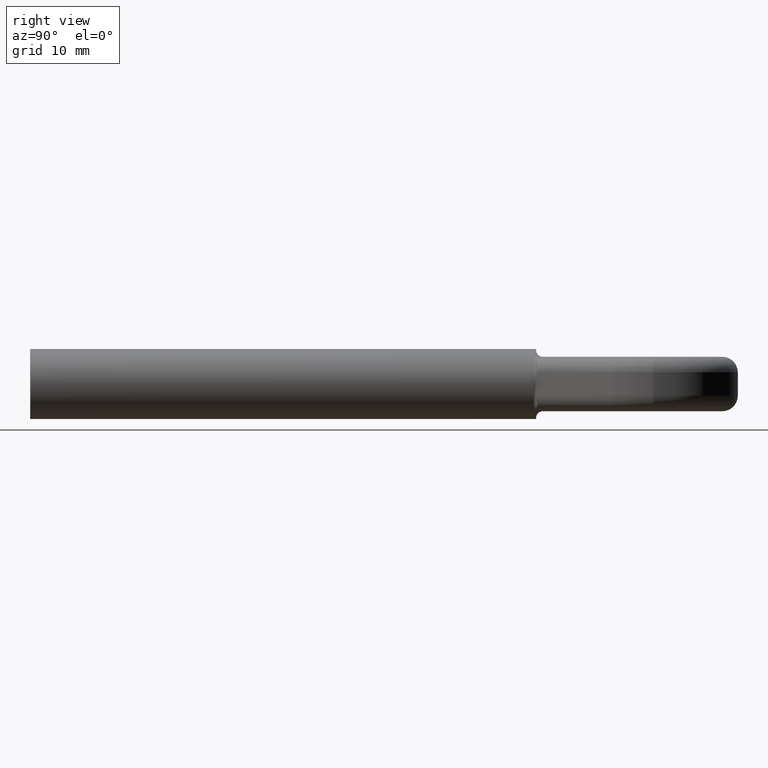
[diagram: clean part render]
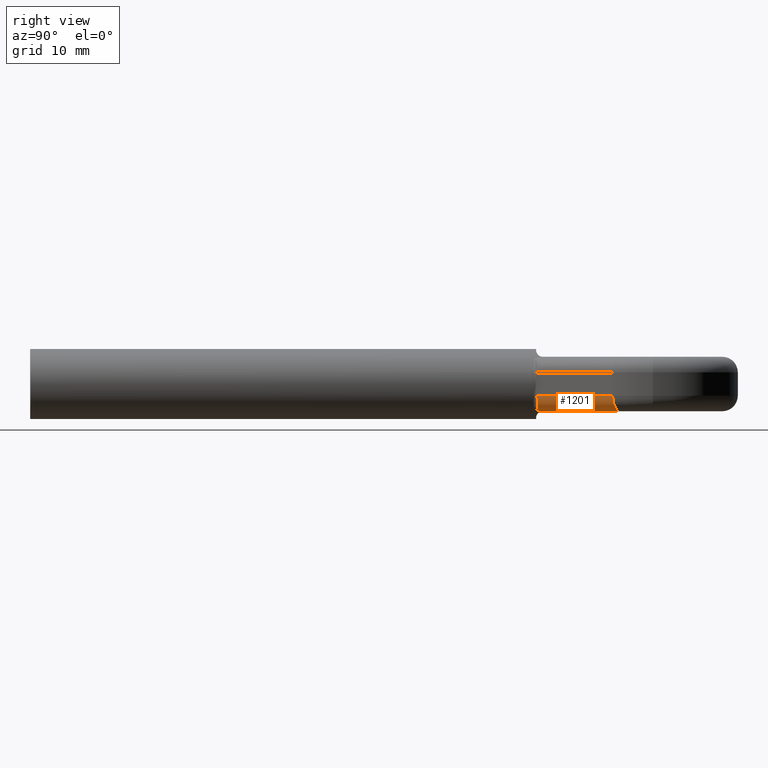
[diagram: same view with one face highlighted and labeled with its STEP entity id]
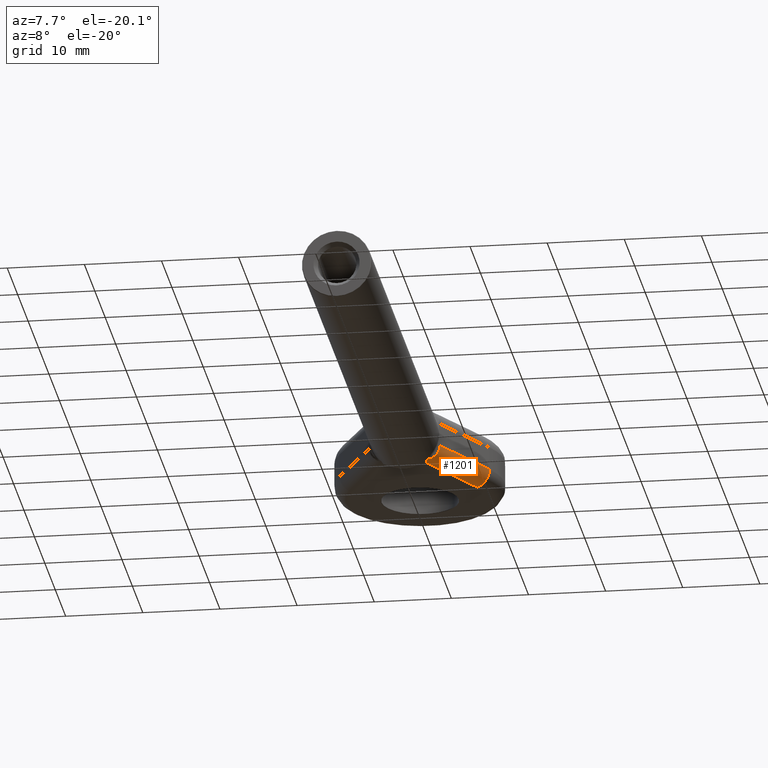
[diagram: same view with one face highlighted and labeled with its STEP entity id]
A machine part, right view. The second image highlights one B-rep face of the part: STEP entity #1201.
A second angle (auxiliary view) of the same face is appended — the face is thin or edge-on in the first view.
In plain terms, the highlighted cylindrical surface (edge-blend (fillet) strip) has radius 2 mm, axis along (0.4683, 0.8836, -0).
Its self-contained STEP definition (entity closure, byte-faithful):
#98 = CARTESIAN_POINT ( 'NONE',  ( 3.134176665091187974, 64.98078964013403436, -3.332221475962080515 ) ) ;
#179 = CARTESIAN_POINT ( 'NONE',  ( 4.555585382432576047, 65.10488905525326686, -1.500000000000000000 ) ) ;
#528 = CARTESIAN_POINT ( 'NONE',  ( 3.004537823797516438, 64.82654200164574831, -3.350037681186599503 ) ) ;
#553 = ORIENTED_EDGE ( 'NONE', *, *, #8246, .T. ) ;
#706 = ORIENTED_EDGE ( 'NONE', *, *, #6430, .T. ) ;
#739 = B_SPLINE_CURVE_WITH_KNOTS ( 'NONE', 3,
 ( #15714, #3402, #7687, #2143, #15824, #12961, #7511, #11644, #6159, #4906 ),
 .UNSPECIFIED., .F., .F.,
 ( 4, 2, 2, 2, 4 ),
 ( 0.000000000000000000, 0.0004050395261275980272, 0.0008100790522551960544, 0.001215118578382794190, 0.001620158104510392109 ),
 .UNSPECIFIED. ) ;
#919 = CARTESIAN_POINT ( 'NONE',  ( 2.832718882806248395, 65.87344453524475796, -3.496527381702153381 ) ) ;
#979 = CARTESIAN_POINT ( 'NONE',  ( 2.784184412046238677, 65.86563761089065849, -3.498842125423258675 ) ) ;
#1179 = B_SPLINE_CURVE_WITH_KNOTS ( 'NONE', 3,
 ( #15170, #16568, #4135, #4310, #15275, #98, #8236, #4255, #1608, #5747 ),
 .UNSPECIFIED., .F., .F.,
 ( 4, 2, 2, 2, 4 ),
 ( 9.697399036122160616E-19, 0.0004897948433108324003, 0.0007346922649662471910, 0.0008571409757939551285, 0.0009795896866216630659 ),
 .UNSPECIFIED. ) ;
#1201 = ADVANCED_FACE ( 'NONE', ( #16143 ), #1835, .T. ) ;
#1490 = EDGE_CURVE ( 'NONE', #16496, #13120, #10352, .T. ) ;
#1608 = CARTESIAN_POINT ( 'NONE',  ( 3.019780709424359166, 64.86533155026140207, -3.351965959928369987 ) ) ;
#1791 = B_SPLINE_CURVE_WITH_KNOTS ( 'NONE', 3,
 ( #2913, #4308, #14921, #6726 ),
 .UNSPECIFIED., .F., .F.,
 ( 4, 4 ),
 ( 1.517883041479706208E-18, 0.0001508368232615208890 ),
 .UNSPECIFIED. ) ;
#1835 = CYLINDRICAL_SURFACE ( 'NONE', #2865, 2.000000000000001332 ) ;
#2143 = CARTESIAN_POINT ( 'NONE',  ( 4.455723280936535247, 65.15705882558522433, -2.175081438504668618 ) ) ;
#2865 = AXIS2_PLACEMENT_3D ( 'NONE', #5186, #5001, #8995 ) ;
#2913 = CARTESIAN_POINT ( 'NONE',  ( 4.555585382432576047, 65.10488905525326686, -1.500000000000000000 ) ) ;
#3135 = VERTEX_POINT ( 'NONE', #179 ) ;
#3163 = CARTESIAN_POINT ( 'NONE',  ( 2.853641043444015146, 65.51459836617735277, -3.479643924761725238 ) ) ;
#3164 = DIRECTION ( 'NONE',  ( 0.4682553809516096233, 0.8835931746057474889, -0.000000000000000000 ) ) ;
#3276 = DIRECTION ( 'NONE',  ( -0.8835931746057467118, 0.4682553809516112886, 0.000000000000000000 ) ) ;
#3402 = CARTESIAN_POINT ( 'NONE',  ( 4.555214612068737345, 65.13775934491324904, -1.784349988001929788 ) ) ;
#3611 = ORIENTED_EDGE ( 'NONE', *, *, #15198, .F. ) ;
#3742 = CARTESIAN_POINT ( 'NONE',  ( 2.686967744623051768, 65.84999999999999432, -3.500000000000000000 ) ) ;
#3826 =( BOUNDED_CURVE ( )  B_SPLINE_CURVE ( 3, ( #919, #979, #11915, #3742 ),
 .UNSPECIFIED., .F., .F. ) 
 B_SPLINE_CURVE_WITH_KNOTS ( ( 4, 4 ),
 ( 1.511858871076520172, 1.570796326794899445 ),
 .UNSPECIFIED. ) 
 CURVE ( )  GEOMETRIC_REPRESENTATION_ITEM ( )  RATIONAL_B_SPLINE_CURVE ( ( 1.000000000000000000, 0.9997105523068707811, 0.9997105523068707811, 1.000000000000000000 ) ) 
 REPRESENTATION_ITEM ( '' )  );
#4135 = CARTESIAN_POINT ( 'NONE',  ( 3.527795722045591553, 65.13807242374400630, -3.190168892867257799 ) ) ;
#4255 = CARTESIAN_POINT ( 'NONE',  ( 3.044558107206777553, 64.89903601315315029, -3.349499944976726873 ) ) ;
#4308 = CARTESIAN_POINT ( 'NONE',  ( 4.559021258839848656, 65.11137251933239156, -1.549740640965873162 ) ) ;
#4310 = CARTESIAN_POINT ( 'NONE',  ( 3.310379503619092834, 65.07244427245332474, -3.279514201589317501 ) ) ;
#4702 = EDGE_LOOP ( 'NONE', ( #16858, #706, #553, #12344, #14722, #11348, #3611, #9317 ) ) ;
#4715 = CARTESIAN_POINT ( 'NONE',  ( 2.832718882806248395, 65.87344453524475796, -3.496527381702153381 ) ) ;
#4731 = CARTESIAN_POINT ( 'NONE',  ( 2.906630401258979202, 65.16425430841493949, -3.435504149093185688 ) ) ;
#4906 = CARTESIAN_POINT ( 'NONE',  ( 3.804123363314471096, 65.16499001553226833, -3.013100874342153013 ) ) ;
#5001 = DIRECTION ( 'NONE',  ( 0.4682553809516096233, 0.8835931746057474889, -0.000000000000000000 ) ) ;
#5040 = CARTESIAN_POINT ( 'NONE',  ( 7.952338571451731397, 75.78570157143551000, -3.500000000000000000 ) ) ;
#5186 = CARTESIAN_POINT ( 'NONE',  ( 2.732813650788504578, 65.93651076190322158, -1.500000000000000000 ) ) ;
#5226 = CARTESIAN_POINT ( 'NONE',  ( 2.686967744623051768, 65.84999999999999432, -3.500000000000000000 ) ) ;
#5400 = VERTEX_POINT ( 'NONE', #12715 ) ;
#5747 = CARTESIAN_POINT ( 'NONE',  ( 3.004537823797516438, 64.82654200164574831, -3.350037681186599503 ) ) ;
#5759 = CARTESIAN_POINT ( 'NONE',  ( 4.500000000000000000, 65.00000000000000000, -1.500000000000000000 ) ) ;
#6046 = CARTESIAN_POINT ( 'NONE',  ( 2.839295530795094447, 65.69301611717344258, -3.491199296745328251 ) ) ;
#6150 = VERTEX_POINT ( 'NONE', #8486 ) ;
#6159 = CARTESIAN_POINT ( 'NONE',  ( 3.912902936351489558, 65.17259994926810407, -2.933100917554467113 ) ) ;
#6430 = EDGE_CURVE ( 'NONE', #13088, #5400, #1179, .T. ) ;
#6726 = CARTESIAN_POINT ( 'NONE',  ( 4.558754256441700292, 65.12285490165950819, -1.649729535670317215 ) ) ;
#7210 = CARTESIAN_POINT ( 'NONE',  ( 2.945394147843090504, 64.99074881450569308, -3.403081684972416809 ) ) ;
#7511 = CARTESIAN_POINT ( 'NONE',  ( 4.191111778939885291, 65.17199376039194192, -2.642409368314174500 ) ) ;
#7687 = CARTESIAN_POINT ( 'NONE',  ( 4.531878116007607815, 65.14510268974422047, -1.918679694272166003 ) ) ;
#8236 = CARTESIAN_POINT ( 'NONE',  ( 3.101954724173294320, 64.95683373178968623, -3.339587282655010814 ) ) ;
#8246 = EDGE_CURVE ( 'NONE', #5400, #9106, #11153, .T. ) ;
#8486 = CARTESIAN_POINT ( 'NONE',  ( 9.719524920663230816, 74.84919080953230264, -1.500000000000000000 ) ) ;
#8543 = EDGE_CURVE ( 'NONE', #3135, #11129, #1791, .T. ) ;
#8830 = DIRECTION ( 'NONE',  ( 0.4682553809516109000, 0.8835931746057469338, 0.000000000000000000 ) ) ;
#8995 = DIRECTION ( 'NONE',  ( -0.8835931746057469338, 0.4682553809516109555, 0.000000000000000000 ) ) ;
#9106 = VERTEX_POINT ( 'NONE', #4715 ) ;
#9317 = ORIENTED_EDGE ( 'NONE', *, *, #8543, .T. ) ;
#10238 = LINE ( 'NONE', #5759, #10896 ) ;
#10352 = LINE ( 'NONE', #5040, #14198 ) ;
#10896 = VECTOR ( 'NONE', #3164, 999.9999999999998863 ) ;
#11129 = VERTEX_POINT ( 'NONE', #12675 ) ;
#11153 = B_SPLINE_CURVE_WITH_KNOTS ( 'NONE', 3,
 ( #528, #7210, #4731, #3163, #6046, #16821 ),
 .UNSPECIFIED., .F., .F.,
 ( 4, 2, 4 ),
 ( 0.0001439874613036023750, 0.0006910248229964083711, 0.001238062184689214503 ),
 .UNSPECIFIED. ) ;
#11348 = ORIENTED_EDGE ( 'NONE', *, *, #16742, .F. ) ;
#11452 = CARTESIAN_POINT ( 'NONE',  ( 7.952338571451736726, 75.78570157143552422, -1.500000000000000000 ) ) ;
#11644 = CARTESIAN_POINT ( 'NONE',  ( 4.013346482944028182, 65.17380004935354521, -2.841713458338870790 ) ) ;
#11915 = CARTESIAN_POINT ( 'NONE',  ( 2.735586632803413742, 65.85782050316528569, -3.499999999999999556 ) ) ;
#12344 = ORIENTED_EDGE ( 'NONE', *, *, #15789, .T. ) ;
#12675 = CARTESIAN_POINT ( 'NONE',  ( 4.558754256441700292, 65.12285490165950819, -1.649729535670317215 ) ) ;
#12715 = CARTESIAN_POINT ( 'NONE',  ( 3.004537823797516438, 64.82654200164574831, -3.350037681186599503 ) ) ;
#12961 = CARTESIAN_POINT ( 'NONE',  ( 4.269506381680034934, 65.16893245898215525, -2.533740024908591071 ) ) ;
#13088 = VERTEX_POINT ( 'NONE', #17321 ) ;
#13120 = VERTEX_POINT ( 'NONE', #5226 ) ;
#13190 = EDGE_CURVE ( 'NONE', #11129, #13088, #739, .T. ) ;
#14198 = VECTOR ( 'NONE', #16017, 999.9999999999998863 ) ;
#14722 = ORIENTED_EDGE ( 'NONE', *, *, #1490, .F. ) ;
#14921 = CARTESIAN_POINT ( 'NONE',  ( 4.560067789189626630, 65.11732398605309413, -1.599772999350008496 ) ) ;
#15170 = CARTESIAN_POINT ( 'NONE',  ( 3.804123363314471096, 65.16499001553226833, -3.013100874342153013 ) ) ;
#15198 = EDGE_CURVE ( 'NONE', #3135, #6150, #10238, .T. ) ;
#15275 = CARTESIAN_POINT ( 'NONE',  ( 3.236873194309511259, 65.04382520314889859, -3.304595714949486673 ) ) ;
#15368 = CARTESIAN_POINT ( 'NONE',  ( 7.952338571451736726, 75.78570157143552422, -3.500000000000000000 ) ) ;
#15714 = CARTESIAN_POINT ( 'NONE',  ( 4.558754256441700292, 65.12285490165950819, -1.649729535670317215 ) ) ;
#15789 = EDGE_CURVE ( 'NONE', #9106, #13120, #3826, .T. ) ;
#15824 = CARTESIAN_POINT ( 'NONE',  ( 4.402705114923705310, 65.16138660314565811, -2.298481480661969112 ) ) ;
#16017 = DIRECTION ( 'NONE',  ( -0.4682553809516096233, -0.8835931746057474889, 0.000000000000000000 ) ) ;
#16143 = FACE_OUTER_BOUND ( 'NONE', #4702, .T. ) ;
#16248 = AXIS2_PLACEMENT_3D ( 'NONE', #11452, #8830, #3276 ) ;
#16496 = VERTEX_POINT ( 'NONE', #15368 ) ;
#16568 = CARTESIAN_POINT ( 'NONE',  ( 3.672139649620033808, 65.15575678095164847, -3.110165893972622886 ) ) ;
#16742 = EDGE_CURVE ( 'NONE', #6150, #16496, #17544, .T. ) ;
#16821 = CARTESIAN_POINT ( 'NONE',  ( 2.832718882806248395, 65.87344453524475796, -3.496527381702153381 ) ) ;
#16858 = ORIENTED_EDGE ( 'NONE', *, *, #13190, .T. ) ;
#17321 = CARTESIAN_POINT ( 'NONE',  ( 3.804123363314471096, 65.16499001553226833, -3.013100874342153013 ) ) ;
#17544 = CIRCLE ( 'NONE', #16248, 2.000000000000000000 ) ;